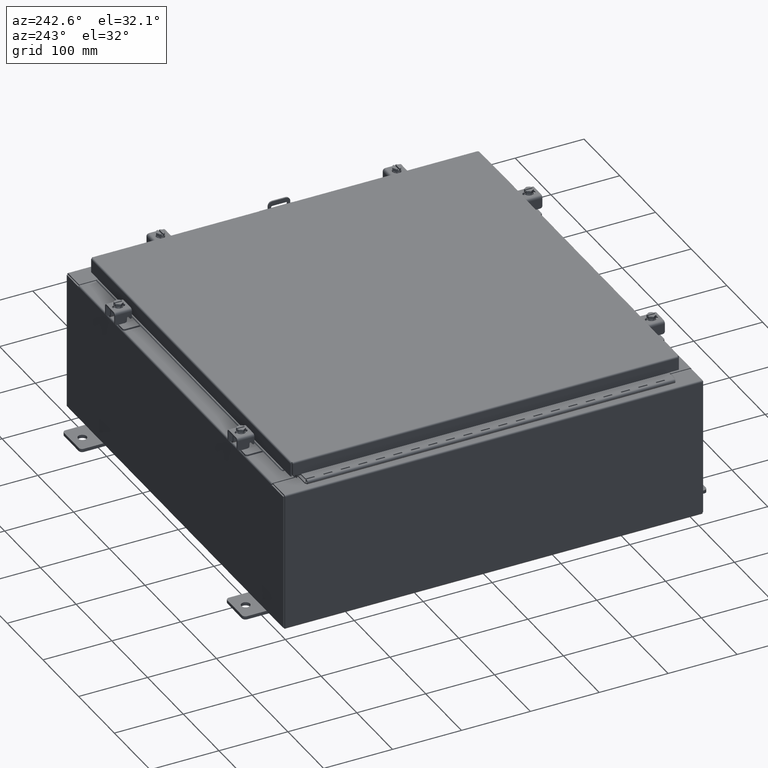
[diagram: clean part render]
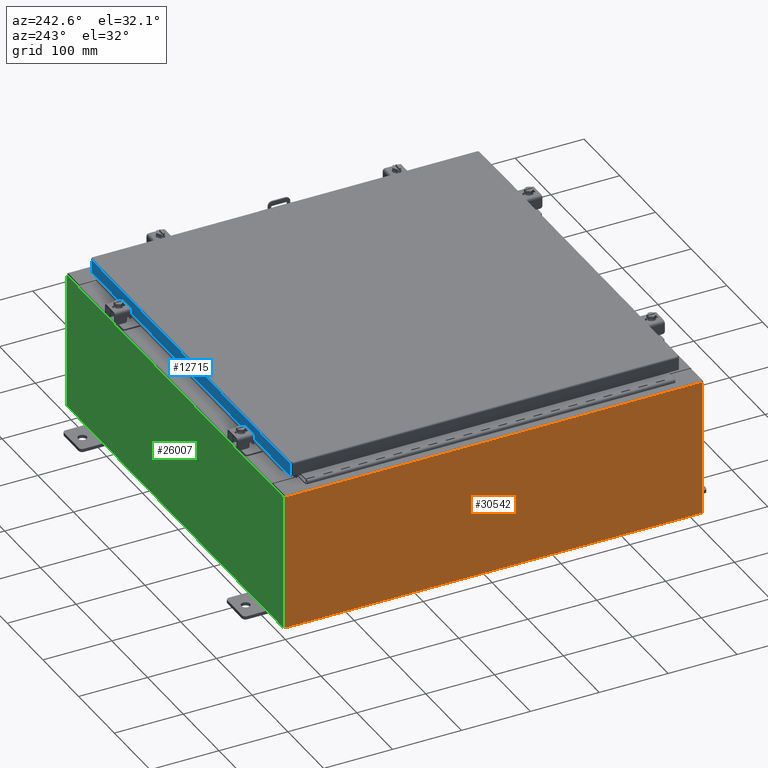
[diagram: same view with three faces highlighted in distinct colors, each labeled with its STEP entity id]
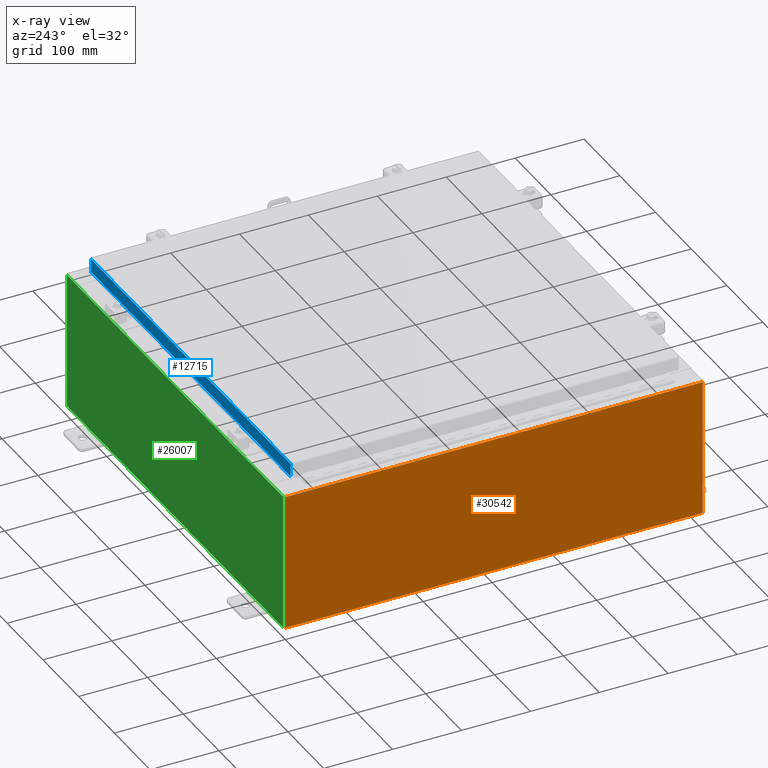
[diagram: x-ray of the same camera — body ghosted, the three highlighted faces saturated]
A machine part, auxiliary view with three faces highlighted in distinct colors.
The next image is the same camera in x-ray (body ghosted, the three faces saturated) — at least one of them is partly hidden behind the body in this view.
Their STEP definitions:

[orange] entity #30542 — the highlighted planar face has unit normal (1, 0, 0).
#187 = CARTESIAN_POINT ( 'NONE',  ( -12.00000000000000400, 11.92529999999999800, 0.01299999999999983500 ) ) ;
#1621 = LINE ( 'NONE', #13582, #27916 ) ;
#1725 = CARTESIAN_POINT ( 'NONE',  ( -12.00000000000000400, -11.92530000000000400, -4.328271664961816700E-014 ) ) ;
#3436 = DIRECTION ( 'NONE',  ( 0.0000000000000000000, 1.000000000000000000, 0.0000000000000000000 ) ) ;
#4075 = CARTESIAN_POINT ( 'NONE',  ( -12.00000000000000400, 11.92529999999999800, 0.01299999999999985200 ) ) ;
#4275 = DIRECTION ( 'NONE',  ( -3.584876173029202900E-015, 0.0000000000000000000, 1.000000000000000000 ) ) ;
#4521 = PLANE ( 'NONE',  #18576 ) ;
#4737 = DIRECTION ( 'NONE',  ( 3.584876173029202900E-015, 0.0000000000000000000, -1.000000000000000000 ) ) ;
#5076 = VECTOR ( 'NONE', #24419, 39.37007874015748100 ) ;
#5560 = VERTEX_POINT ( 'NONE', #20538 ) ;
#6971 = CARTESIAN_POINT ( 'NONE',  ( -12.00000000000000400, 0.0000000000000000000, -4.328271664961816700E-014 ) ) ;
#7069 = DIRECTION ( 'NONE',  ( 3.584876173029202900E-015, 0.0000000000000000000, -1.000000000000000000 ) ) ;
#7747 = EDGE_CURVE ( 'NONE', #20751, #21638, #13454, .T. ) ;
#8104 = ORIENTED_EDGE ( 'NONE', *, *, #19786, .T. ) ;
#8665 = CARTESIAN_POINT ( 'NONE',  ( -12.00000000000000400, -11.92530000000000000, 0.01299999999999985200 ) ) ;
#13454 = LINE ( 'NONE', #4075, #5076 ) ;
#13582 = CARTESIAN_POINT ( 'NONE',  ( -12.00000000000003200, -11.92530000000000400, 7.837599999999999200 ) ) ;
#13884 = EDGE_CURVE ( 'NONE', #5560, #16719, #1621, .T. ) ;
#14540 = FACE_OUTER_BOUND ( 'NONE', #29105, .T. ) ;
#15458 = VECTOR ( 'NONE', #4275, 39.37007874015748100 ) ;
#16071 = CARTESIAN_POINT ( 'NONE',  ( -12.00000000000003200, 11.92529999999999800, 7.837599999999999200 ) ) ;
#16258 = LINE ( 'NONE', #1725, #15458 ) ;
#16719 = VERTEX_POINT ( 'NONE', #16071 ) ;
#17754 = ORIENTED_EDGE ( 'NONE', *, *, #7747, .F. ) ;
#18576 = AXIS2_PLACEMENT_3D ( 'NONE', #6971, #22310, #7069 ) ;
#19786 = EDGE_CURVE ( 'NONE', #20751, #5560, #16258, .T. ) ;
#19992 = CARTESIAN_POINT ( 'NONE',  ( -12.00000000000000400, 11.92529999999999800, -4.328271664961816700E-014 ) ) ;
#20538 = CARTESIAN_POINT ( 'NONE',  ( -12.00000000000003200, -11.92530000000000000, 7.837599999999999200 ) ) ;
#20751 = VERTEX_POINT ( 'NONE', #8665 ) ;
#21481 = EDGE_CURVE ( 'NONE', #16719, #21638, #30579, .T. ) ;
#21638 = VERTEX_POINT ( 'NONE', #187 ) ;
#22310 = DIRECTION ( 'NONE',  ( 1.000000000000000000, 0.0000000000000000000, 3.584876173029202900E-015 ) ) ;
#23212 = ORIENTED_EDGE ( 'NONE', *, *, #13884, .T. ) ;
#24419 = DIRECTION ( 'NONE',  ( -0.0000000000000000000, 1.000000000000000000, -0.0000000000000000000 ) ) ;
#24504 = ORIENTED_EDGE ( 'NONE', *, *, #21481, .T. ) ;
#24586 = VECTOR ( 'NONE', #4737, 39.37007874015748100 ) ;
#27916 = VECTOR ( 'NONE', #3436, 39.37007874015748100 ) ;
#29105 = EDGE_LOOP ( 'NONE', ( #23212, #24504, #17754, #8104 ) ) ;
#30542 = ADVANCED_FACE ( 'NONE', ( #14540 ), #4521, .F. ) ;
#30579 = LINE ( 'NONE', #19992, #24586 ) ;

[blue] entity #12715 — the highlighted planar face has unit normal (0, -1, -0).
#491 = VECTOR ( 'NONE', #21641, 39.37007874015748100 ) ;
#580 = EDGE_CURVE ( 'NONE', #30308, #30148, #20155, .T. ) ;
#1069 = CARTESIAN_POINT ( 'NONE',  ( -10.98915786437626900, 11.09399999999999900, -0.8500000000000020900 ) ) ;
#1492 = CARTESIAN_POINT ( 'NONE',  ( -10.98915786437626900, 11.09399999999999800, -0.07470000000000015500 ) ) ;
#2068 = LINE ( 'NONE', #4853, #14036 ) ;
#2070 = DIRECTION ( 'NONE',  ( 1.000000000000000000, -4.379057701015054300E-047, 1.233005954894504400E-016 ) ) ;
#2882 = VERTEX_POINT ( 'NONE', #6641 ) ;
#2972 = EDGE_CURVE ( 'NONE', #6165, #32112, #2068, .T. ) ;
#3497 = LINE ( 'NONE', #1492, #16254 ) ;
#3687 = CARTESIAN_POINT ( 'NONE',  ( 10.98915786437626500, 11.09399999999999900, -0.8499999999999999800 ) ) ;
#3818 = CARTESIAN_POINT ( 'NONE',  ( 0.0000000000000000000, 11.09399999999999800, 3.168943672650545400E-014 ) ) ;
#4063 = DIRECTION ( 'NONE',  ( -0.0000000000000000000, 2.818880942772350300E-015, -1.000000000000000000 ) ) ;
#4853 = CARTESIAN_POINT ( 'NONE',  ( 10.98915786437626500, 11.09399999999999800, 3.168943672650545400E-014 ) ) ;
#5361 = EDGE_CURVE ( 'NONE', #2882, #32112, #15847, .T. ) ;
#5669 = CARTESIAN_POINT ( 'NONE',  ( 10.98915786437626500, 11.09399999999999800, -0.08770000000000026400 ) ) ;
#6165 = VERTEX_POINT ( 'NONE', #5669 ) ;
#6641 = CARTESIAN_POINT ( 'NONE',  ( 10.23915786437625100, 11.09399999999999200, -0.8500000000000043100 ) ) ;
#6986 = VERTEX_POINT ( 'NONE', #29040 ) ;
#8117 = CARTESIAN_POINT ( 'NONE',  ( -10.23915786437626700, 11.09399999999999200, -0.8500000000000043100 ) ) ;
#8158 = LINE ( 'NONE', #13279, #27671 ) ;
#8948 = PLANE ( 'NONE',  #14895 ) ;
#11516 = DIRECTION ( 'NONE',  ( 3.475696988576941300E-031, -1.000000000000000000, -2.818880942772350300E-015 ) ) ;
#11708 = ORIENTED_EDGE ( 'NONE', *, *, #2972, .T. ) ;
#12660 = ORIENTED_EDGE ( 'NONE', *, *, #580, .F. ) ;
#12715 = ADVANCED_FACE ( 'NONE', ( #27095 ), #8948, .F. ) ;
#13279 = CARTESIAN_POINT ( 'NONE',  ( -10.23915786437626500, 11.09399999999999200, -0.8500000000000043100 ) ) ;
#14036 = VECTOR ( 'NONE', #20115, 39.37007874015748100 ) ;
#14046 = LINE ( 'NONE', #29202, #491 ) ;
#14895 = AXIS2_PLACEMENT_3D ( 'NONE', #3818, #11516, #29293 ) ;
#15271 = ORIENTED_EDGE ( 'NONE', *, *, #24438, .F. ) ;
#15808 = DIRECTION ( 'NONE',  ( 1.000000000000000000, -0.0000000000000000000, -0.0000000000000000000 ) ) ;
#15847 = LINE ( 'NONE', #27463, #27791 ) ;
#15913 = ORIENTED_EDGE ( 'NONE', *, *, #31496, .F. ) ;
#16254 = VECTOR ( 'NONE', #4063, 39.37007874015748100 ) ;
#19735 = CARTESIAN_POINT ( 'NONE',  ( -11.07800000000000300, 11.09399999999999900, -0.8500000000000020900 ) ) ;
#20115 = DIRECTION ( 'NONE',  ( 0.0000000000000000000, 2.818880942772350300E-015, -1.000000000000000000 ) ) ;
#20155 = LINE ( 'NONE', #19735, #26087 ) ;
#21641 = DIRECTION ( 'NONE',  ( -1.000000000000000000, -3.475696988576942200E-031, -9.473942235605600700E-046 ) ) ;
#24438 = EDGE_CURVE ( 'NONE', #30148, #2882, #8158, .T. ) ;
#25462 = DIRECTION ( 'NONE',  ( 1.000000000000000000, -4.379057701015054300E-047, 1.233005954894504400E-016 ) ) ;
#26087 = VECTOR ( 'NONE', #25462, 39.37007874015748100 ) ;
#27095 = FACE_OUTER_BOUND ( 'NONE', #30756, .T. ) ;
#27463 = CARTESIAN_POINT ( 'NONE',  ( -11.07800000000000300, 11.09399999999999900, -0.8500000000000020900 ) ) ;
#27671 = VECTOR ( 'NONE', #15808, 39.37007874015748100 ) ;
#27791 = VECTOR ( 'NONE', #2070, 39.37007874015748100 ) ;
#27934 = ORIENTED_EDGE ( 'NONE', *, *, #5361, .F. ) ;
#28523 = EDGE_CURVE ( 'NONE', #6986, #30308, #3497, .T. ) ;
#29040 = CARTESIAN_POINT ( 'NONE',  ( -10.98915786437626900, 11.09399999999999800, -0.08770000000000026400 ) ) ;
#29202 = CARTESIAN_POINT ( 'NONE',  ( -11.07800000000000300, 11.09399999999999800, -0.08770000000000026400 ) ) ;
#29293 = DIRECTION ( 'NONE',  ( 0.0000000000000000000, 2.818880942772350300E-015, -1.000000000000000000 ) ) ;
#29524 = ORIENTED_EDGE ( 'NONE', *, *, #28523, .F. ) ;
#30148 = VERTEX_POINT ( 'NONE', #8117 ) ;
#30308 = VERTEX_POINT ( 'NONE', #1069 ) ;
#30756 = EDGE_LOOP ( 'NONE', ( #15913, #11708, #27934, #15271, #12660, #29524 ) ) ;
#31496 = EDGE_CURVE ( 'NONE', #6165, #6986, #14046, .T. ) ;
#32112 = VERTEX_POINT ( 'NONE', #3687 ) ;

[green] entity #26007 — the highlighted planar face has unit normal (0, -1, 0).
#125 = VERTEX_POINT ( 'NONE', #5727 ) ;
#691 = LINE ( 'NONE', #25809, #20213 ) ;
#941 = DIRECTION ( 'NONE',  ( -0.0000000000000000000, 1.000000000000000000, -0.0000000000000000000 ) ) ;
#947 = EDGE_CURVE ( 'NONE', #1612, #5300, #10570, .T. ) ;
#1380 = DIRECTION ( 'NONE',  ( -4.340572780400004900E-014, 0.0000000000000000000, -1.000000000000000000 ) ) ;
#1612 = VERTEX_POINT ( 'NONE', #18955 ) ;
#1696 = ORIENTED_EDGE ( 'NONE', *, *, #29943, .T. ) ;
#2077 = EDGE_CURVE ( 'NONE', #26588, #20304, #18465, .T. ) ;
#2258 = EDGE_CURVE ( 'NONE', #19198, #1612, #19647, .T. ) ;
#2919 = CARTESIAN_POINT ( 'NONE',  ( 10.63720000000000400, 0.0000000000000000000, 0.0000000000000000000 ) ) ;
#2981 = VERTEX_POINT ( 'NONE', #15098 ) ;
#3697 = CARTESIAN_POINT ( 'NONE',  ( 10.63720000000000400, 0.0000000000000000000, 3.912299999999999700 ) ) ;
#3795 = VECTOR ( 'NONE', #13329, 39.37007874015748100 ) ;
#3956 = CARTESIAN_POINT ( 'NONE',  ( -11.92530000000000000, 0.0000000000000000000, 3.925299999999999600 ) ) ;
#4207 = LINE ( 'NONE', #27138, #23703 ) ;
#4332 = VECTOR ( 'NONE', #8819, 39.37007874015748100 ) ;
#4924 = VECTOR ( 'NONE', #25799, 39.37007874015748100 ) ;
#5300 = VERTEX_POINT ( 'NONE', #9087 ) ;
#5468 = ORIENTED_EDGE ( 'NONE', *, *, #947, .T. ) ;
#5472 = DIRECTION ( 'NONE',  ( 0.0000000000000000000, 0.0000000000000000000, -1.000000000000000000 ) ) ;
#5727 = CARTESIAN_POINT ( 'NONE',  ( 10.67455000000000200, 0.0000000000000000000, 3.874949999999999700 ) ) ;
#5783 = EDGE_CURVE ( 'NONE', #24957, #11323, #24601, .T. ) ;
#6044 = ORIENTED_EDGE ( 'NONE', *, *, #20120, .F. ) ;
#6252 = CARTESIAN_POINT ( 'NONE',  ( -10.67455000000000200, 0.0000000000000000000, 0.0000000000000000000 ) ) ;
#6346 = ORIENTED_EDGE ( 'NONE', *, *, #2258, .T. ) ;
#6445 = FACE_OUTER_BOUND ( 'NONE', #29497, .T. ) ;
#6698 = VECTOR ( 'NONE', #1380, 39.37007874015748100 ) ;
#6712 = ORIENTED_EDGE ( 'NONE', *, *, #5783, .F. ) ;
#6848 = VERTEX_POINT ( 'NONE', #31044 ) ;
#6904 = VECTOR ( 'NONE', #31707, 39.37007874015748100 ) ;
#7109 = CARTESIAN_POINT ( 'NONE',  ( 11.92530000000000000, 0.0000000000000000000, 3.925299999999999600 ) ) ;
#7892 = CARTESIAN_POINT ( 'NONE',  ( -11.92530000000000000, 0.0000000000000000000, 3.925299999999999600 ) ) ;
#7898 = VECTOR ( 'NONE', #28259, 39.37007874015748100 ) ;
#8040 = AXIS2_PLACEMENT_3D ( 'NONE', #10091, #27904, #12675 ) ;
#8460 = ORIENTED_EDGE ( 'NONE', *, *, #30922, .F. ) ;
#8819 = DIRECTION ( 'NONE',  ( 0.0000000000000000000, 0.0000000000000000000, 1.000000000000000000 ) ) ;
#9087 = CARTESIAN_POINT ( 'NONE',  ( -11.92530000000000000, 0.0000000000000000000, 3.925299999999999600 ) ) ;
#9485 = LINE ( 'NONE', #7892, #7898 ) ;
#9655 = PLANE ( 'NONE',  #25689 ) ;
#10091 = CARTESIAN_POINT ( 'NONE',  ( -10.65587500000000200, 0.0000000000000000000, 3.874949999999999700 ) ) ;
#10570 = LINE ( 'NONE', #3956, #3795 ) ;
#11323 = VERTEX_POINT ( 'NONE', #32490 ) ;
#11897 = LINE ( 'NONE', #16631, #6698 ) ;
#11912 = DIRECTION ( 'NONE',  ( 1.000000000000000000, 0.0000000000000000000, 0.0000000000000000000 ) ) ;
#12030 = VECTOR ( 'NONE', #32561, 39.37007874015748100 ) ;
#12675 = DIRECTION ( 'NONE',  ( 0.0000000000000000000, 0.0000000000000000000, -1.000000000000000000 ) ) ;
#13329 = DIRECTION ( 'NONE',  ( -0.0000000000000000000, -0.0000000000000000000, 1.000000000000000000 ) ) ;
#13542 = EDGE_CURVE ( 'NONE', #2981, #19198, #18776, .T. ) ;
#13926 = CARTESIAN_POINT ( 'NONE',  ( -11.92530000000000000, 0.0000000000000000000, -3.925299999999999600 ) ) ;
#14744 = CARTESIAN_POINT ( 'NONE',  ( 10.63720000000000400, 0.0000000000000000000, 3.874949999999999700 ) ) ;
#15097 = ORIENTED_EDGE ( 'NONE', *, *, #2077, .F. ) ;
#15098 = CARTESIAN_POINT ( 'NONE',  ( 11.92530000000000000, 0.0000000000000000000, 3.925299999999999600 ) ) ;
#15417 = CARTESIAN_POINT ( 'NONE',  ( -10.63720000000000400, 0.0000000000000000000, 3.912299999999999700 ) ) ;
#16190 = CARTESIAN_POINT ( 'NONE',  ( 10.65587500000000200, 0.0000000000000000000, 3.874949999999999700 ) ) ;
#16332 = EDGE_CURVE ( 'NONE', #18313, #2981, #9485, .T. ) ;
#16461 = CIRCLE ( 'NONE', #31586, 0.01867499999999949400 ) ;
#16631 = CARTESIAN_POINT ( 'NONE',  ( 10.67454999999983300, 0.0000000000000000000, -4.633214197254590000E-013 ) ) ;
#17148 = ORIENTED_EDGE ( 'NONE', *, *, #26101, .F. ) ;
#17353 = DIRECTION ( 'NONE',  ( 0.0000000000000000000, -0.0000000000000000000, -1.000000000000000000 ) ) ;
#17801 = ORIENTED_EDGE ( 'NONE', *, *, #13542, .T. ) ;
#17913 = LINE ( 'NONE', #25428, #23859 ) ;
#18313 = VERTEX_POINT ( 'NONE', #28820 ) ;
#18395 = CIRCLE ( 'NONE', #8040, 0.01867499999999949400 ) ;
#18465 = LINE ( 'NONE', #2919, #4924 ) ;
#18737 = DIRECTION ( 'NONE',  ( 0.0000000000000000000, 0.0000000000000000000, -1.000000000000000000 ) ) ;
#18776 = LINE ( 'NONE', #7109, #12030 ) ;
#18955 = CARTESIAN_POINT ( 'NONE',  ( -11.92530000000000000, 0.0000000000000000000, -3.925299999999999600 ) ) ;
#19198 = VERTEX_POINT ( 'NONE', #30437 ) ;
#19647 = LINE ( 'NONE', #13926, #6904 ) ;
#19689 = EDGE_CURVE ( 'NONE', #18313, #125, #11897, .T. ) ;
#20120 = EDGE_CURVE ( 'NONE', #30760, #6848, #691, .T. ) ;
#20213 = VECTOR ( 'NONE', #5472, 39.37007874015748100 ) ;
#20304 = VERTEX_POINT ( 'NONE', #3697 ) ;
#20350 = CARTESIAN_POINT ( 'NONE',  ( -10.67455000000000200, 0.0000000000000000000, 3.874949999999999700 ) ) ;
#23703 = VECTOR ( 'NONE', #11912, 39.37007874015748100 ) ;
#23859 = VECTOR ( 'NONE', #28032, 39.37007874015748100 ) ;
#24601 = LINE ( 'NONE', #6252, #4332 ) ;
#24957 = VERTEX_POINT ( 'NONE', #20350 ) ;
#25428 = CARTESIAN_POINT ( 'NONE',  ( -11.92530000000000000, 0.0000000000000000000, 3.925299999999999600 ) ) ;
#25689 = AXIS2_PLACEMENT_3D ( 'NONE', #27472, #32546, #17353 ) ;
#25799 = DIRECTION ( 'NONE',  ( 0.0000000000000000000, 0.0000000000000000000, 1.000000000000000000 ) ) ;
#25809 = CARTESIAN_POINT ( 'NONE',  ( -10.63720000000000400, 0.0000000000000000000, 0.0000000000000000000 ) ) ;
#26007 = ADVANCED_FACE ( 'NONE', ( #6445 ), #9655, .F. ) ;
#26101 = EDGE_CURVE ( 'NONE', #6848, #24957, #18395, .T. ) ;
#26588 = VERTEX_POINT ( 'NONE', #14744 ) ;
#27138 = CARTESIAN_POINT ( 'NONE',  ( -10.63720000000000400, 0.0000000000000000000, 3.912299999999999700 ) ) ;
#27259 = EDGE_CURVE ( 'NONE', #5300, #11323, #17913, .T. ) ;
#27472 = CARTESIAN_POINT ( 'NONE',  ( 0.0000000000000000000, 0.0000000000000000000, 0.0000000000000000000 ) ) ;
#27904 = DIRECTION ( 'NONE',  ( -0.0000000000000000000, 1.000000000000000000, -0.0000000000000000000 ) ) ;
#28032 = DIRECTION ( 'NONE',  ( 1.000000000000000000, 0.0000000000000000000, 0.0000000000000000000 ) ) ;
#28259 = DIRECTION ( 'NONE',  ( 1.000000000000000000, 0.0000000000000000000, 0.0000000000000000000 ) ) ;
#28700 = ORIENTED_EDGE ( 'NONE', *, *, #19689, .F. ) ;
#28820 = CARTESIAN_POINT ( 'NONE',  ( 10.67455000000000200, 0.0000000000000000000, 3.925299999999999600 ) ) ;
#28850 = ORIENTED_EDGE ( 'NONE', *, *, #16332, .T. ) ;
#29497 = EDGE_LOOP ( 'NONE', ( #6712, #17148, #6044, #1696, #15097, #8460, #28700, #28850, #17801, #6346, #5468, #31474 ) ) ;
#29943 = EDGE_CURVE ( 'NONE', #30760, #20304, #4207, .T. ) ;
#30437 = CARTESIAN_POINT ( 'NONE',  ( 11.92530000000000000, 0.0000000000000000000, -3.925299999999999600 ) ) ;
#30760 = VERTEX_POINT ( 'NONE', #15417 ) ;
#30922 = EDGE_CURVE ( 'NONE', #125, #26588, #16461, .T. ) ;
#31044 = CARTESIAN_POINT ( 'NONE',  ( -10.63720000000000400, 0.0000000000000000000, 3.874949999999999700 ) ) ;
#31474 = ORIENTED_EDGE ( 'NONE', *, *, #27259, .T. ) ;
#31586 = AXIS2_PLACEMENT_3D ( 'NONE', #16190, #941, #18737 ) ;
#31707 = DIRECTION ( 'NONE',  ( -1.000000000000000000, -0.0000000000000000000, -0.0000000000000000000 ) ) ;
#32490 = CARTESIAN_POINT ( 'NONE',  ( -10.67455000000000200, 0.0000000000000000000, 3.925299999999999600 ) ) ;
#32546 = DIRECTION ( 'NONE',  ( 0.0000000000000000000, -1.000000000000000000, 0.0000000000000000000 ) ) ;
#32561 = DIRECTION ( 'NONE',  ( 0.0000000000000000000, 0.0000000000000000000, -1.000000000000000000 ) ) ;